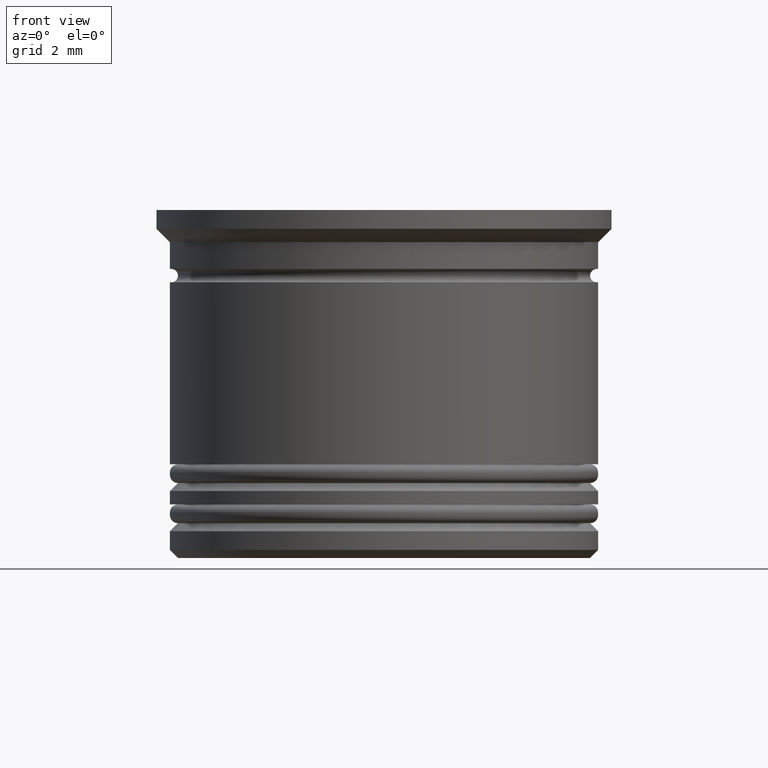
[diagram: clean part render]
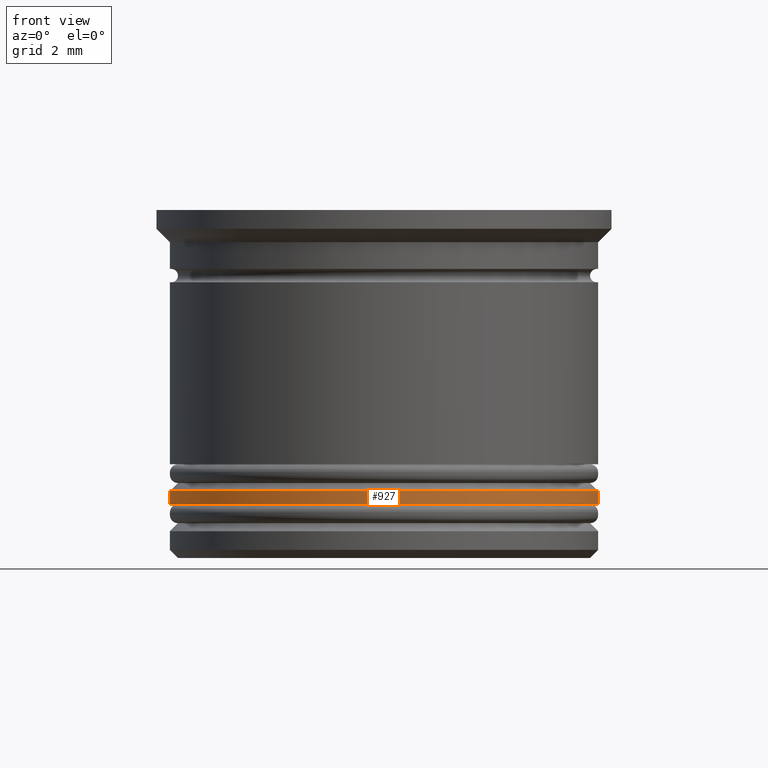
[diagram: same view with one face highlighted and labeled with its STEP entity id]
A machine part, front view. The second image highlights one B-rep face of the part: STEP entity #927.
In plain terms, the highlighted cylindrical surface (partial cylindrical patch) has radius 8 mm, axis along (-0, -0, 1).
Its self-contained STEP definition (entity closure, byte-faithful):
#52 = VERTEX_POINT ( 'NONE', #1070 ) ;
#66 = DIRECTION ( 'NONE',  ( -0.000000000000000000, -0.000000000000000000, 1.000000000000000000 ) ) ;
#232 = VERTEX_POINT ( 'NONE', #1594 ) ;
#234 = DIRECTION ( 'NONE',  ( -1.000000000000000000, 0.000000000000000000, 0.000000000000000000 ) ) ;
#238 = CARTESIAN_POINT ( 'NONE',  ( 8.000000000000000000, 0.000000000000000000, 0.000000000000000000 ) ) ;
#251 = CARTESIAN_POINT ( 'NONE',  ( -8.000000000000000000, 9.797174393178825657E-16, 0.000000000000000000 ) ) ;
#316 = ORIENTED_EDGE ( 'NONE', *, *, #1187, .F. ) ;
#341 = CIRCLE ( 'NONE', #1982, 8.000000000000001776 ) ;
#352 = ORIENTED_EDGE ( 'NONE', *, *, #1868, .T. ) ;
#373 = AXIS2_PLACEMENT_3D ( 'NONE', #521, #1625, #234 ) ;
#481 = CARTESIAN_POINT ( 'NONE',  ( -8.000000000000001776, 9.797174393178827630E-16, -11.00000000000000000 ) ) ;
#482 = CYLINDRICAL_SURFACE ( 'NONE', #627, 8.000000000000000000 ) ;
#505 = VECTOR ( 'NONE', #723, 1000.000000000000000 ) ;
#521 = CARTESIAN_POINT ( 'NONE',  ( 0.000000000000000000, 0.000000000000000000, -10.50000000000000355 ) ) ;
#536 = DIRECTION ( 'NONE',  ( -0.000000000000000000, -0.000000000000000000, 1.000000000000000000 ) ) ;
#561 = ORIENTED_EDGE ( 'NONE', *, *, #1857, .T. ) ;
#627 = AXIS2_PLACEMENT_3D ( 'NONE', #1056, #1994, #1069 ) ;
#723 = DIRECTION ( 'NONE',  ( -0.000000000000000000, -0.000000000000000000, 1.000000000000000000 ) ) ;
#800 = EDGE_LOOP ( 'NONE', ( #316, #352, #561, #1407 ) ) ;
#821 = LINE ( 'NONE', #238, #1100 ) ;
#868 = LINE ( 'NONE', #251, #505 ) ;
#927 = ADVANCED_FACE ( 'NONE', ( #1700 ), #482, .T. ) ;
#977 = CARTESIAN_POINT ( 'NONE',  ( 0.000000000000000000, 0.000000000000000000, -11.00000000000000000 ) ) ;
#1056 = CARTESIAN_POINT ( 'NONE',  ( 0.000000000000000000, 0.000000000000000000, 0.000000000000000000 ) ) ;
#1069 = DIRECTION ( 'NONE',  ( 1.000000000000000000, 0.000000000000000000, 0.000000000000000000 ) ) ;
#1070 = CARTESIAN_POINT ( 'NONE',  ( -8.000000000000000000, 9.797174393178825657E-16, -10.50000000000000355 ) ) ;
#1100 = VECTOR ( 'NONE', #66, 1000.000000000000000 ) ;
#1187 = EDGE_CURVE ( 'NONE', #1438, #52, #868, .T. ) ;
#1333 = CIRCLE ( 'NONE', #373, 8.000000000000000000 ) ;
#1407 = ORIENTED_EDGE ( 'NONE', *, *, #1562, .T. ) ;
#1409 = CARTESIAN_POINT ( 'NONE',  ( 8.000000000000000000, 0.000000000000000000, -10.50000000000000355 ) ) ;
#1438 = VERTEX_POINT ( 'NONE', #481 ) ;
#1452 = VERTEX_POINT ( 'NONE', #1409 ) ;
#1562 = EDGE_CURVE ( 'NONE', #1452, #52, #1333, .T. ) ;
#1594 = CARTESIAN_POINT ( 'NONE',  ( 8.000000000000001776, 0.000000000000000000, -11.00000000000000000 ) ) ;
#1609 = DIRECTION ( 'NONE',  ( 1.000000000000000000, 0.000000000000000000, 0.000000000000000000 ) ) ;
#1625 = DIRECTION ( 'NONE',  ( 0.000000000000000000, 0.000000000000000000, -1.000000000000000000 ) ) ;
#1700 = FACE_OUTER_BOUND ( 'NONE', #800, .T. ) ;
#1857 = EDGE_CURVE ( 'NONE', #232, #1452, #821, .T. ) ;
#1868 = EDGE_CURVE ( 'NONE', #1438, #232, #341, .T. ) ;
#1982 = AXIS2_PLACEMENT_3D ( 'NONE', #977, #536, #1609 ) ;
#1994 = DIRECTION ( 'NONE',  ( -0.000000000000000000, -0.000000000000000000, 1.000000000000000000 ) ) ;